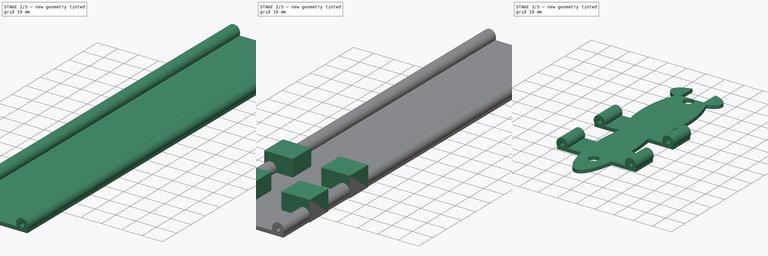
[diagram: build sequence overview — one tinted view per stage of 3, left to right]
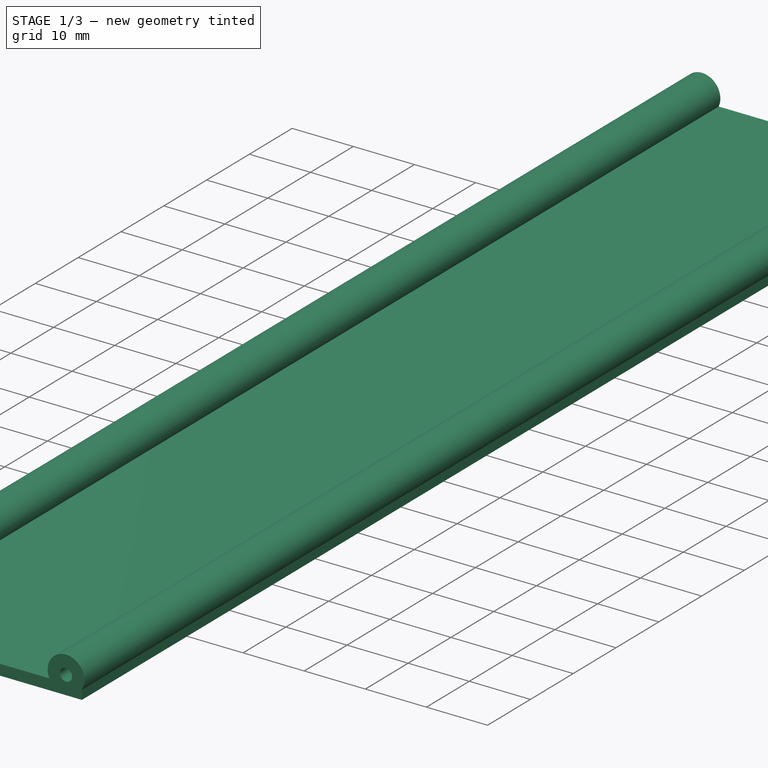
[diagram: stage 1 of 3 — iso view after this stage's code; geometry added in this stage tinted green]
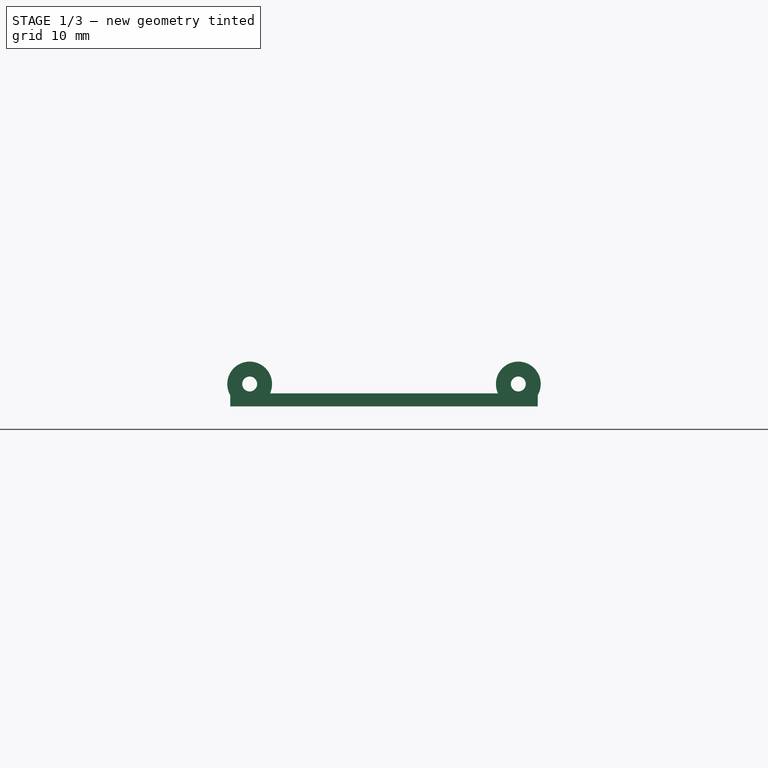
[diagram: stage 1 of 3 — front view after this stage's code; geometry added in this stage tinted green]
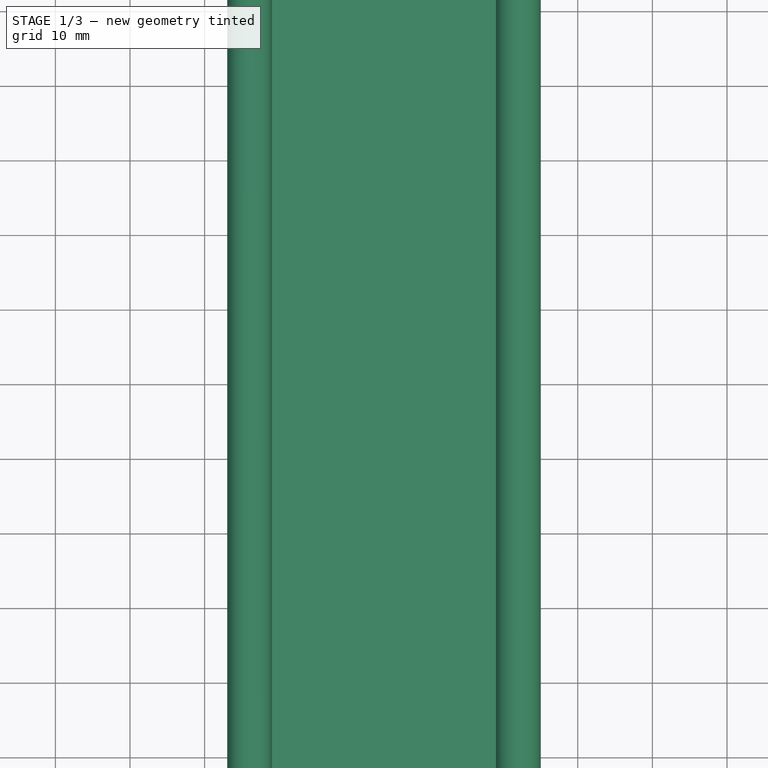
[diagram: stage 1 of 3 — top view after this stage's code; geometry added in this stage tinted green]
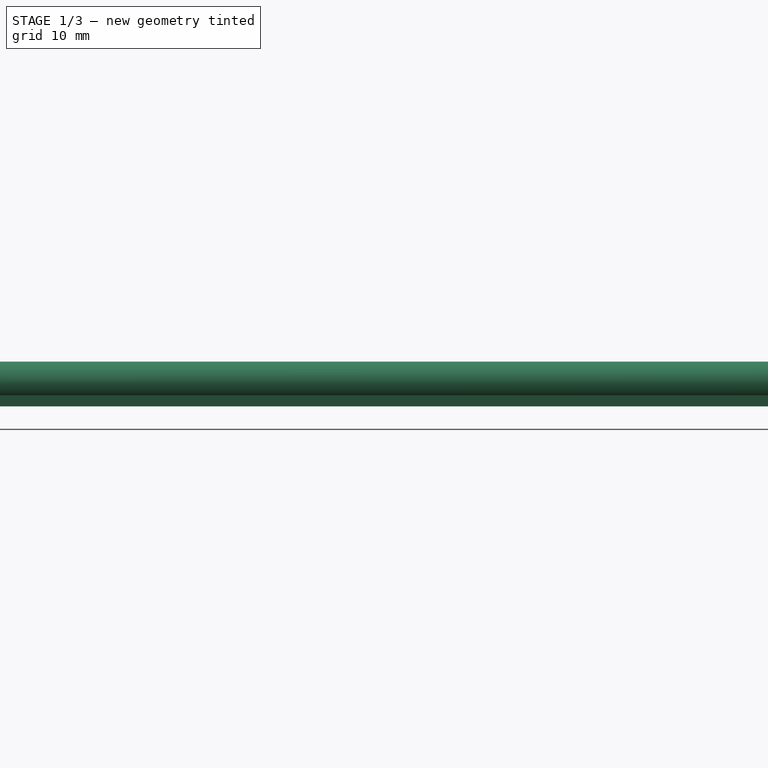
[diagram: stage 1 of 3 — right view after this stage's code; geometry added in this stage tinted green]
FCSTD DOCUMENT  (FreeCAD 0.20R29410 (Git))
Label: centerHinge
License: All rights reserved
LicenseURL: http://en.wikipedia.org/wiki/All_rights_reserved
objects: Part::Feature×4, Sketcher::SketchObject×4, PartDesign::Pad×3, PartDesign::Body×3, PartDesign::FeatureBase×2, Part::Part2DObjectPython×1, PartDesign::Pocket×1, Part::MultiCommon×1
note: 23 computed .brp shape members not serialized (recipe doc carries the construction recipe); baked Part::Feature solids carry a one-line shape summary decoded from their .brp
EXTERNAL_REF file=wingHinge.FCStd obj=Spreadsheet

FEATURE [Part::Feature] path35
  shape: bbox 29.08 x 9.851 x 2e-07 mm, 0 faces, 0 solids (baked)
FEATURE [Part::Feature] path37
  shape: bbox 7.021 x 36.33 x 2e-07 mm, 0 faces, 0 solids (baked)
FEATURE [Part::Feature] path39
  shape: bbox 27.87 x 41.57 x 2e-07 mm, 0 faces, 0 solids (baked)
FEATURE [Part::Feature] path41
  shape: bbox 7.021 x 36.33 x 2e-07 mm, 0 faces, 0 solids (baked)
FEATURE [Sketcher::SketchObject] Sketch
  FullyConstrained = false
  Placement = pos=(0,0,0) rot=(0,0,1;3.14159rad)
  sketch-geometry (4):
    g0: BSplineCurve PolesCount=5 KnotsCount=3 Degree=2 IsPeriodic=0
    g1: BSplineCurve PolesCount=3 KnotsCount=2 Degree=2 IsPeriodic=0
    g2: BSplineCurve PolesCount=5 KnotsCount=3 Degree=2 IsPeriodic=0
    g3: BSplineCurve PolesCount=3 KnotsCount=2 Degree=2 IsPeriodic=0
  constraints (4):
    c: Coincident(g0,g1)
    c: Coincident(g1,g2)
    c: Coincident(g0,g3)
    c: Coincident(g2,g3)
FEATURE [Part::Part2DObjectPython] Clone2D  label="Sketch (2D)"  # Draft 2D object (typed FeaturePython)
  Fuse = false
  Objects = -> [Sketch]
  Placement = pos=(0,0,0) rot=(0,0,1;3.14159rad)
  Scale = (1.1,1.1,1.1)
FEATURE [PartDesign::FeatureBase] BaseFeature
  BaseFeature = -> Clone2D
FEATURE [PartDesign::Pad] Pad
  BaseFeature = -> BaseFeature
  Direction = (0,0,1)
  Length = 1.75
  Length2 = 10
  Profile = -> Clone2D
  ReferenceAxis = -> Clone2D [N_Axis]
  Type = 0
  expr: Length = wingHinge#Spreadsheet.printThick
FEATURE [PartDesign::Body] Body  label="bodyShape"
  BaseFeature = -> Clone2D
  Group = -> [BaseFeature,Clone2D,Pad,Sketch001,Pocket,Sketch002,Pad001]
  Origin = -> Origin
  Tip = -> Pad001
FEATURE [Sketcher::SketchObject] Sketch003
  FullyConstrained = true
  MapMode = 5
  Placement = pos=(0,0,0) rot=(1,0,0;1.5708rad)
  Support = -> [XZ_Plane001]
  expr: Constraints[15] = <<wingHinge>>#Spreadsheet.printThick
  expr: Constraints[16] = wingHinge#Spreadsheet.hingeRoundDia
  expr: Constraints[18] = wingHinge#Spreadsheet.centerHingeWingSep
  expr: Constraints[19] = wingHinge#Spreadsheet.hingeRoundDia / 2
  expr: Constraints[1] = Sketch001.Constraints.centerDist
  expr: Constraints[24] = wingHinge#Spreadsheet.pinThick
  sketch-geometry (9):
    g0: LineSegment StartX=14.0406 StartY=18.9132 StartZ=0 EndX=14.0406 EndY=-25.263 EndZ=0
    g1: LineSegment StartX=-6.55749 StartY=1.5 StartZ=0 EndX=-6.55749 EndY=0 EndZ=0
    g2: LineSegment StartX=-6.55749 StartY=0 StartZ=0 EndX=34.6387 EndY=0 EndZ=0
    g3: LineSegment StartX=34.6387 StartY=0 StartZ=0 EndX=34.6387 EndY=1.5 EndZ=0
    g4: LineSegment StartX=-1.23224 StartY=1.75 StartZ=0 EndX=29.3134 EndY=1.75 EndZ=0
    g5: ArcOfCircle CenterX=-3.95941 CenterY=3 CenterZ=0 NormalX=0 NormalY=0 NormalZ=1 AngleXU=0 Radius=3 StartAngle=5.85341 EndAngle=9.94838
    g6: ArcOfCircle CenterX=32.0406 CenterY=3 CenterZ=0 NormalX=0 NormalY=0 NormalZ=1 AngleXU=0 Radius=3 StartAngle=5.75959 EndAngle=9.85455
    g7: Circle CenterX=32.0406 CenterY=3 CenterZ=0 NormalX=0 NormalY=0 NormalZ=1 AngleXU=0 Radius=1
    g8: Circle CenterX=-3.95941 CenterY=3 CenterZ=0 NormalX=0 NormalY=0 NormalZ=1 AngleXU=0 Radius=1
  constraints (25):
    c: Vertical(g0)
    c: DistanceX(g-1,g0) = 14.0406
    c: Block(g0)
    c: PointOnObject(g1,g-1)
    c: Vertical(g1)
    c: Coincident(g1,g2)
    c: PointOnObject(g2,g-1)
    c: Coincident(g2,g3)
    c: Vertical(g3)
    c: Coincident(g5,g1)
    c: Coincident(g5,g4)
    c: Coincident(g6,g4)
    c: Coincident(g6,g3)
    c: Equal(g1,g3)
    c: Symmetric(g4,g4,g0)
    c: DistanceY(g-1,g4) = 1.75
    c: Diameter(g5) = 6
    c: Symmetric(g5,g6,g0)
    c: DistanceX(g5,g6) = 36
    c: DistanceY(g2,g6) = 3
    c: DistanceY(g3,g3) = 1.5
    c: Coincident(g7,g6)
    c: Coincident(g8,g5)
    c: Equal(g8,g7)
    c: Diameter(g8) = 2
FEATURE [PartDesign::Pad] Pad002
  Direction = (0,-1,2e-16)
  Length = 100
  Length2 = 100
  Placement = pos=(0,0,0) rot=(1,0,0;1.5708rad)
  Profile = -> Sketch003
  ReferenceAxis = -> Sketch003 [N_Axis]
  Type = 4
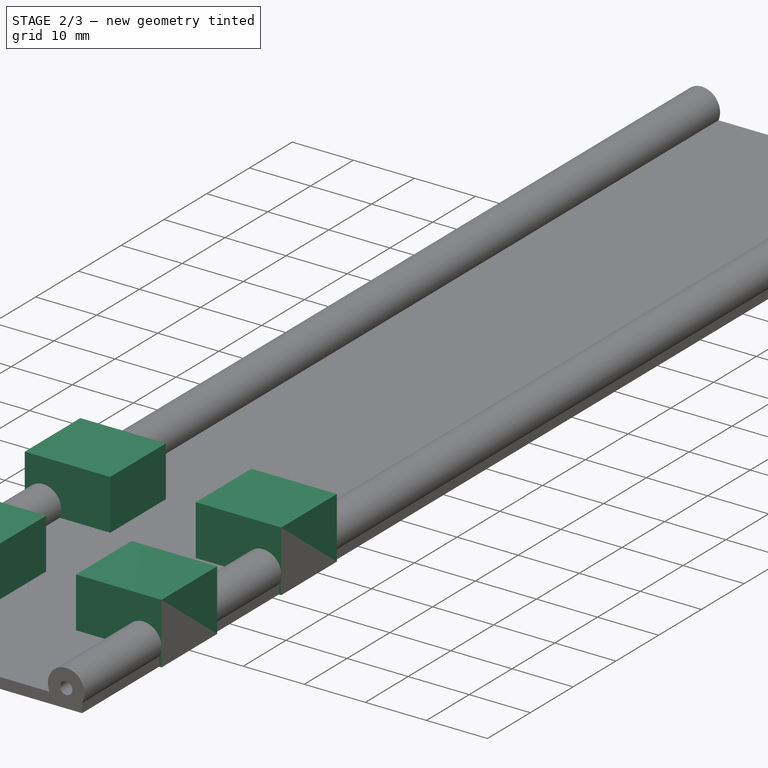
[diagram: stage 2 of 3 — iso view after this stage's code; geometry added in this stage tinted green]
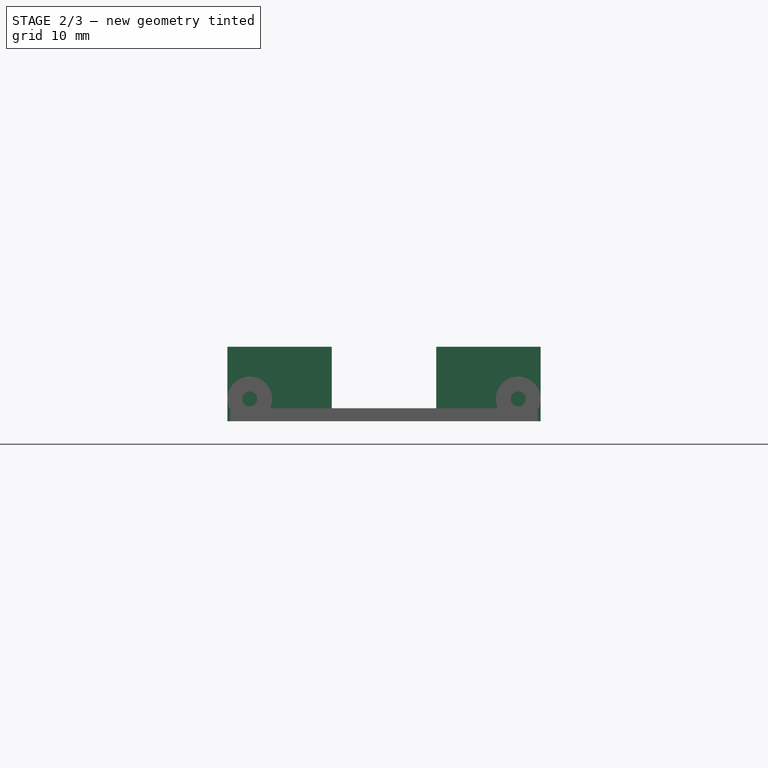
[diagram: stage 2 of 3 — front view after this stage's code; geometry added in this stage tinted green]
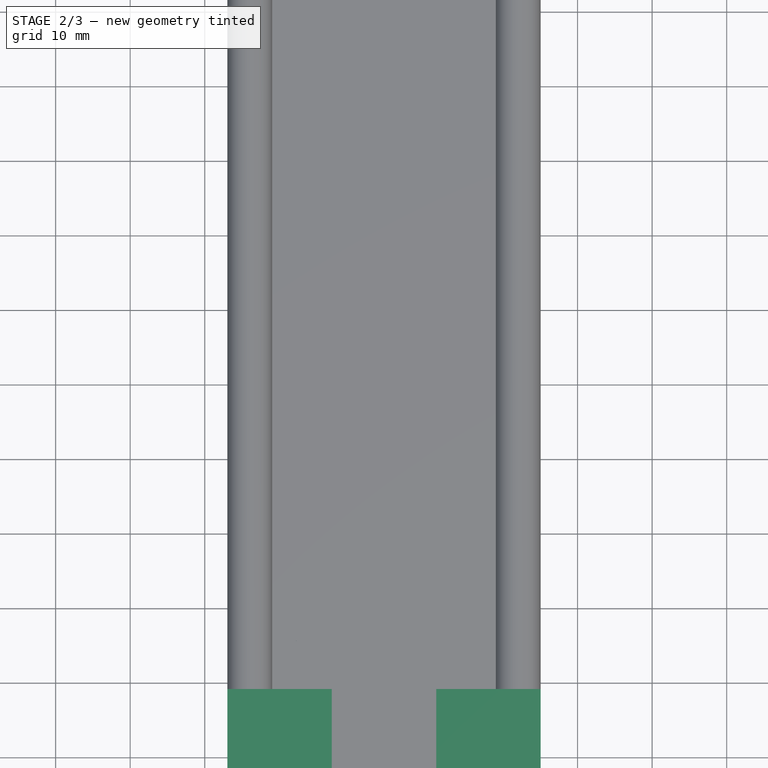
[diagram: stage 2 of 3 — top view after this stage's code; geometry added in this stage tinted green]
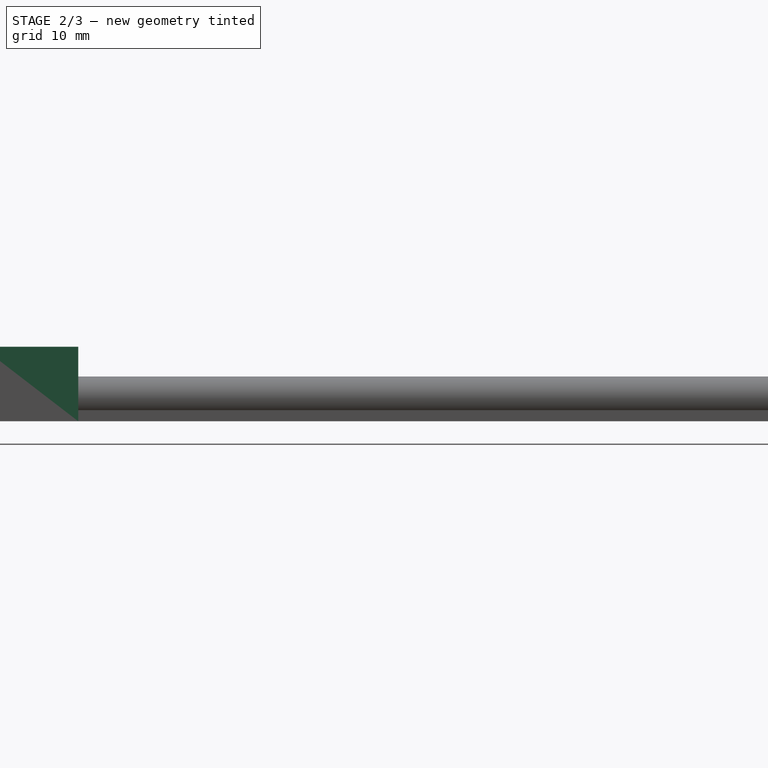
[diagram: stage 2 of 3 — right view after this stage's code; geometry added in this stage tinted green]
FEATURE [Sketcher::SketchObject] Sketch001
  ExternalGeometry = -> [Pad]
  FullyConstrained = true
  MapMode = 5
  Placement = pos=(0,0,1.75) rot=(0,0,1;0rad)
  Support = -> [Pad]
  expr: Constraints[16] = 1.5mm
  sketch-geometry (7):
    g0: Circle CenterX=14.0406 CenterY=-13.0375 CenterZ=0 NormalX=0 NormalY=0 NormalZ=1 AngleXU=0 Radius=2.5
    g1: LineSegment StartX=14.0406 StartY=8.26208 StartZ=0 EndX=14.0406 EndY=-137.247 EndZ=0
    g2: Circle CenterX=14.0406 CenterY=-84.0375 CenterZ=0 NormalX=0 NormalY=0 NormalZ=1 AngleXU=0 Radius=2.5
    g3: LineSegment StartX=8.04059 StartY=3.96245 StartZ=0 EndX=20.0406 EndY=3.96245 EndZ=0
    g4: LineSegment StartX=20.0406 StartY=3.96245 StartZ=0 EndX=20.0406 EndY=-10.0375 EndZ=0
    g5: LineSegment StartX=20.0406 StartY=-10.0375 StartZ=0 EndX=8.04059 EndY=-10.0375 EndZ=0
    g6: LineSegment StartX=8.04059 StartY=-10.0375 StartZ=0 EndX=8.04059 EndY=3.96245 EndZ=0
  constraints (20):
    c: Symmetric(g-3,g-3,g1)
    c: PointOnObject(g0,g1)
    c: PointOnObject(g2,g1)
    c: Equal(g0,g2)
    c: Diameter(g0) = 5
    c: DistanceY(g2,g0) = 71
    c: DistanceY(g0,g-3) = 1.5
    c: Coincident(g3,g4)
    c: Coincident(g4,g5)
    c: Coincident(g5,g6)
    c: Coincident(g6,g3)
    c: Horizontal(g5)
    c: Vertical(g4)
    c: Vertical(g6)
    c: Symmetric(g3,g3,g1)
    c: DistanceX(g3,g3) = 12
    c: DistanceY(g-3,g5) = 1.5
    c: DistanceY(g4,g4) = 14
    c: Block(g1)
    c: DistanceX(g-1,g1) = 14.0406  'centerDist'
FEATURE [PartDesign::Pocket] Pocket
  BaseFeature = -> Pad
  Direction = (0,0,-1)
  Length = 5
  Length2 = 5
  Profile = -> Sketch001
  ReferenceAxis = -> Sketch001 [N_Axis]
  Type = 0
FEATURE [Sketcher::SketchObject] Sketch002
  FullyConstrained = true
  MapMode = 5
  Support = -> [XY_Plane]
  expr: Constraints[34] = Sketch001.Constraints.centerDist
  expr: Constraints[42] = wingHinge#Spreadsheet.centerHingeletLen
  expr: Constraints[43] = wingHinge#Spreadsheet.hingeLen
  expr: Constraints[45] = wingHinge#Spreadsheet.centerHingeletSeperation
  expr: Constraints[48] = wingHinge#Spreadsheet.centerHingeWingSep + wingHinge#Spreadsheet.hingeRoundDia
  sketch-geometry (23):
    g0: LineSegment StartX=7.04059 StartY=-22 StartZ=0 EndX=7.04059 EndY=-41 EndZ=0
    g1: LineSegment StartX=7.04059 StartY=-41 StartZ=0 EndX=-6.95941 EndY=-41 EndZ=0
    g2: LineSegment StartX=-6.95941 StartY=-41 StartZ=0 EndX=-6.95941 EndY=-54 EndZ=0
    g3: LineSegment StartX=-6.95941 StartY=-54 StartZ=0 EndX=7.04059 EndY=-54 EndZ=0
    g4: LineSegment StartX=7.04059 StartY=-54 StartZ=0 EndX=7.04059 EndY=-69 EndZ=0
    g5: LineSegment StartX=7.04059 StartY=-69 StartZ=0 EndX=-6.95941 EndY=-69 EndZ=0
    g6: LineSegment StartX=-6.95941 StartY=-69 StartZ=0 EndX=-6.95941 EndY=-82 EndZ=0
    g7: LineSegment StartX=-6.95941 StartY=-82 StartZ=0 EndX=35.0406 EndY=-82 EndZ=0
    g8: LineSegment StartX=35.0406 StartY=-82 StartZ=0 EndX=35.0406 EndY=-69 EndZ=0
    g9: LineSegment StartX=35.0406 StartY=-69 StartZ=0 EndX=21.0406 EndY=-69 EndZ=0
    g10: LineSegment StartX=21.0406 StartY=-69 StartZ=0 EndX=21.0406 EndY=-54 EndZ=0
    g11: LineSegment StartX=21.0406 StartY=-54 StartZ=0 EndX=35.0406 EndY=-54 EndZ=0
    g12: LineSegment StartX=35.0406 StartY=-54 StartZ=0 EndX=35.0406 EndY=-41 EndZ=0
    g13: LineSegment StartX=35.0406 StartY=-41 StartZ=0 EndX=21.0406 EndY=-41 EndZ=0
    g14: LineSegment StartX=21.0406 StartY=-41 StartZ=0 EndX=21.0406 EndY=-22 EndZ=0
    g15: LineSegment StartX=21.0406 StartY=-22 StartZ=0 EndX=7.04059 EndY=-22 EndZ=0
    g16: LineSegment StartX=14.0406 StartY=10.8185 StartZ=0 EndX=14.0406 EndY=-111.66 EndZ=0
    g17: LineSegment StartX=7.04059 StartY=-41 StartZ=0 EndX=7.04059 EndY=-54 EndZ=0
    g18: LineSegment StartX=21.0406 StartY=-54 StartZ=0 EndX=21.0406 EndY=-41 EndZ=0
    g19: LineSegment StartX=-6.95941 StartY=-82 StartZ=0 EndX=7.04059 EndY=-82 EndZ=0
    g20: LineSegment StartX=7.04059 StartY=-82 StartZ=0 EndX=7.04059 EndY=-69 EndZ=0
    g21: LineSegment StartX=21.0406 StartY=-69 StartZ=0 EndX=21.0406 EndY=-82 EndZ=0
    g22: LineSegment StartX=21.0406 StartY=-82 StartZ=0 EndX=35.0406 EndY=-82 EndZ=0
  constraints (63):
    c: Vertical(g0)
    c: Coincident(g0,g1)
    c: Horizontal(g1)
    c: Coincident(g1,g2)
    c: Vertical(g2)
    c: Coincident(g2,g3)
    c: Horizontal(g3)
    c: Coincident(g3,g4)
    c: Vertical(g4)
    c: Coincident(g4,g5)
    c: Horizontal(g5)
    c: Coincident(g5,g6)
    c: Vertical(g6)
    c: Coincident(g6,g7)
    c: Horizontal(g7)
    c: Coincident(g7,g8)
    c: Vertical(g8)
    c: Coincident(g8,g9)
    c: Horizontal(g9)
    c: Coincident(g9,g10)
    c: Vertical(g10)
    c: Coincident(g10,g11)
    c: Horizontal(g11)
    c: Coincident(g11,g12)
    c: Vertical(g12)
    c: Coincident(g12,g13)
    c: Horizontal(g13)
    c: Coincident(g13,g14)
    c: Vertical(g14)
    c: Coincident(g14,g15)
    c: Coincident(g15,g0)
    c: Vertical(g3,g0)
    c: Vertical(g13,g10)
    c: Horizontal(g12,g1)
    c: DistanceX(g-1,g16) = 14.0406
    c: Block(g16)
    c: Symmetric(g0,g14,g16)
    c: Symmetric(g1,g12,g16)
    c: Horizontal(g3,g10)
    c: Vertical(g5,g2)
    c: Vertical(g8,g11)
    c: Equal(g8,g12)
    c: DistanceY(g12,g12) = 13
    c: DistanceY(g7,g14) = 60
    c: DistanceY(g0,g-1) = 22
    c: DistanceY(g10,g10) = 15
    c: DistanceX(g3,g10) = 14
    c: Horizontal(g4,g9)
    c: DistanceX(g7,g7) = 42
    c: Coincident(g17,g1)
    c: Coincident(g17,g3)
    c: Coincident(g18,g11)
    c: Coincident(g18,g13)
    c: Coincident(g6,g19)
    c: PointOnObject(g19,g7)
    c: Coincident(g19,g20)
    c: Coincident(g20,g5)
    c: Vertical(g20)
    c: Coincident(g9,g21)
    c: PointOnObject(g21,g7)
    c: Vertical(g21)
    c: Coincident(g21,g22)
    c: Coincident(g22,g8)
FEATURE [PartDesign::Pad] Pad001
  BaseFeature = -> Pocket
  Direction = (0,0,1)
  Length = 10
  Length2 = 10
  Profile = -> Sketch002
  ReferenceAxis = -> Sketch002 [N_Axis]
  Type = 0
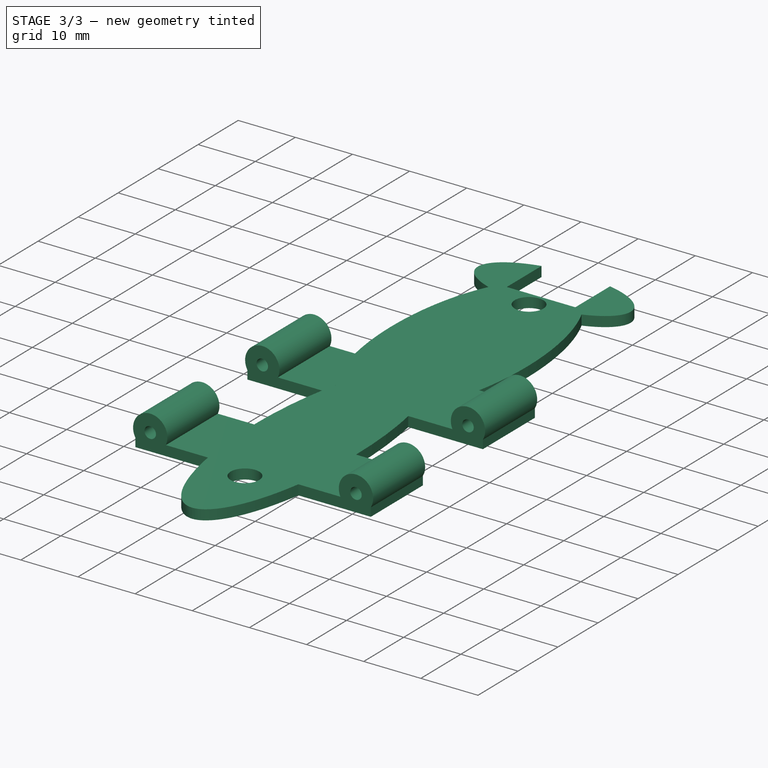
[diagram: stage 3 of 3 — iso view after this stage's code; geometry added in this stage tinted green]
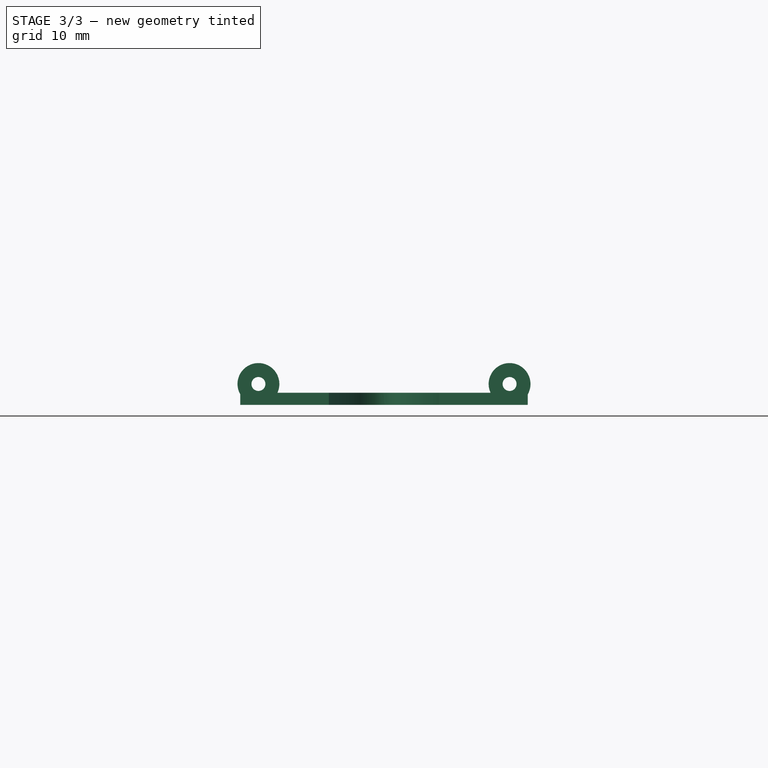
[diagram: stage 3 of 3 — front view after this stage's code; geometry added in this stage tinted green]
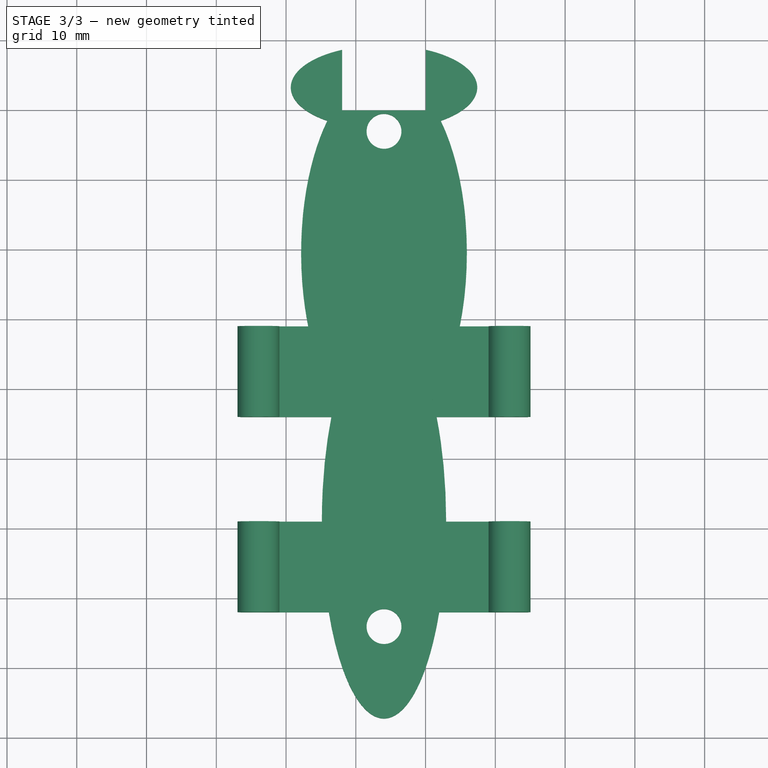
[diagram: stage 3 of 3 — top view after this stage's code; geometry added in this stage tinted green]
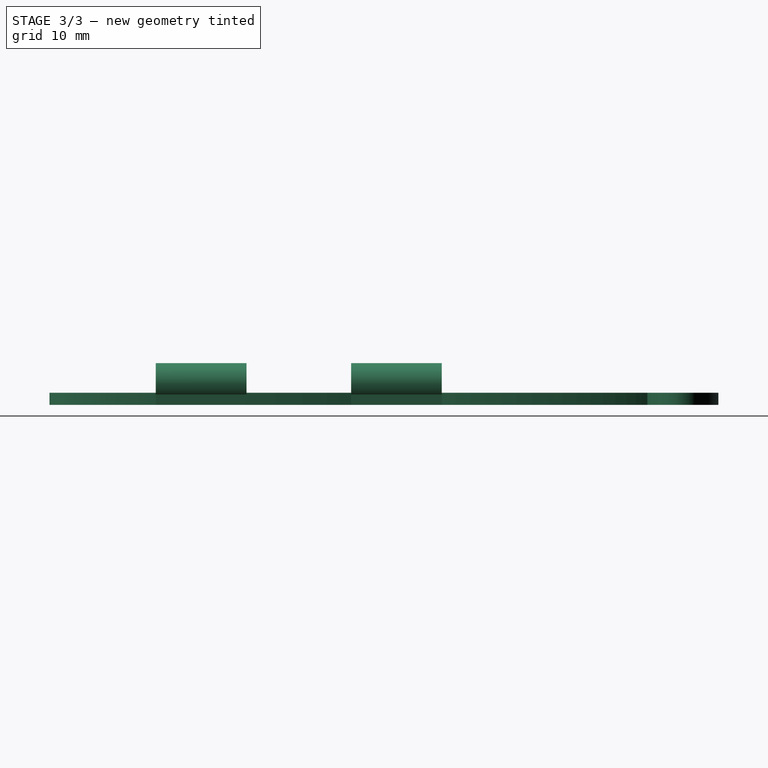
[diagram: stage 3 of 3 — right view after this stage's code; geometry added in this stage tinted green]
FEATURE [PartDesign::Body] Body001  label="hingeShape"
  Group = -> [Sketch003,Pad002]
  Origin = -> Origin001
  Tip = -> Pad002
FEATURE [Part::MultiCommon] Common
  Shapes = -> [Body001,Body]
FEATURE [PartDesign::FeatureBase] BaseFeature001
  BaseFeature = -> Common
FEATURE [PartDesign::Body] Body002
  BaseFeature = -> Common
  Group = -> [BaseFeature001]
  Origin = -> Origin002
  Tip = -> BaseFeature001
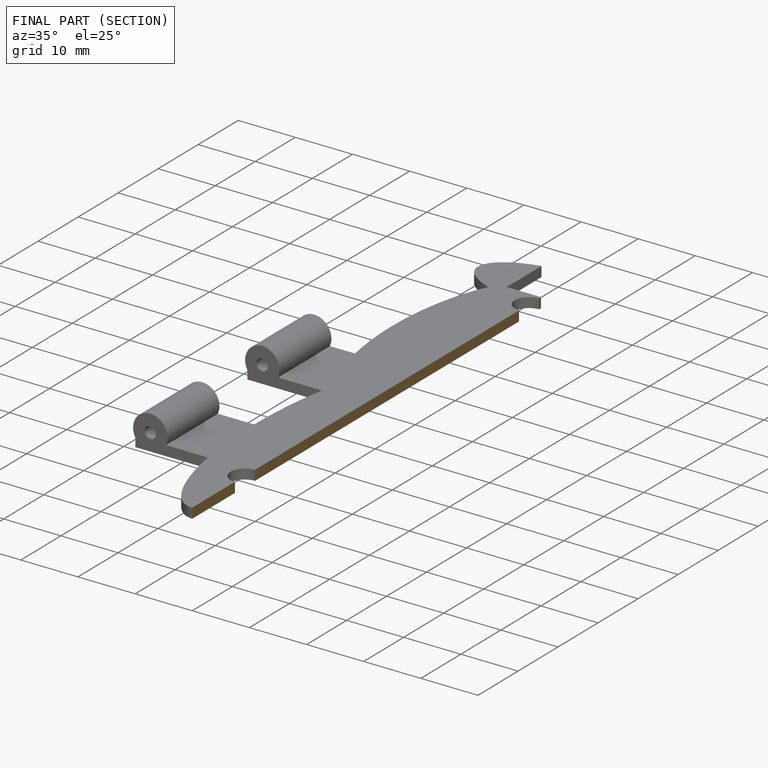
[diagram: finished part — half-section view (interior)]
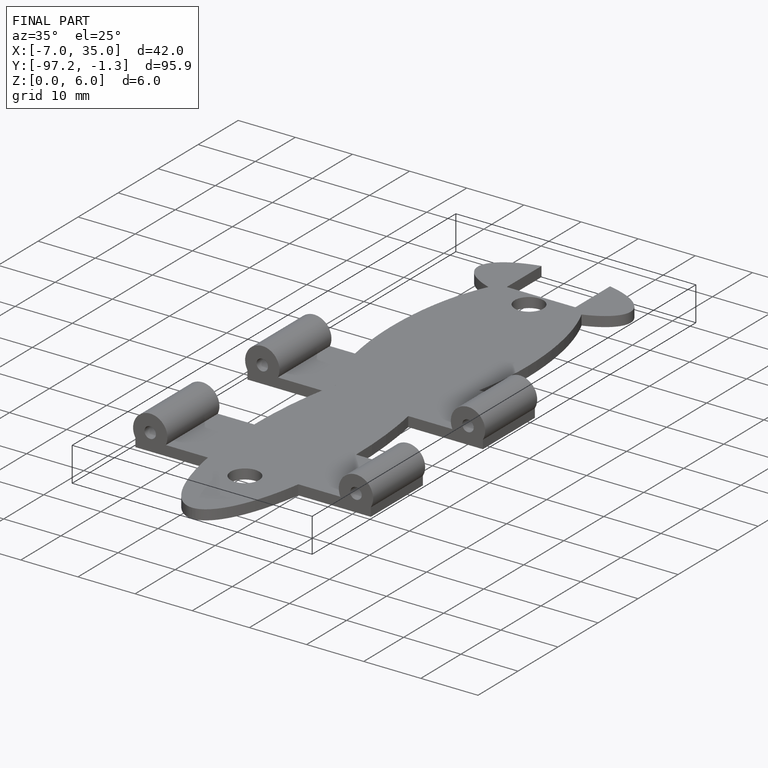
[diagram: finished part — iso view with bounding-box wireframe]
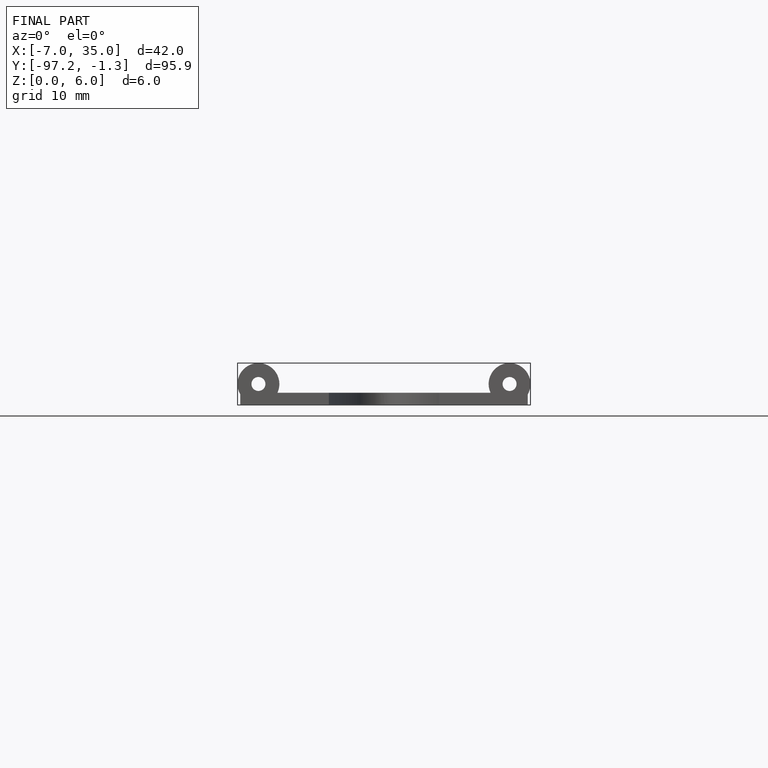
[diagram: finished part — front view with bounding-box wireframe]
